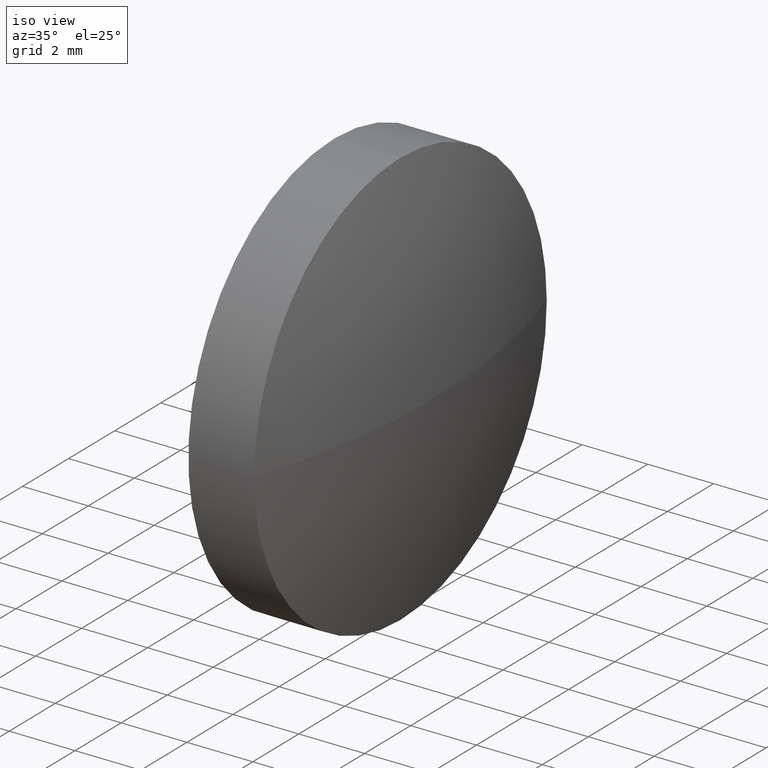
[diagram: clean part render]
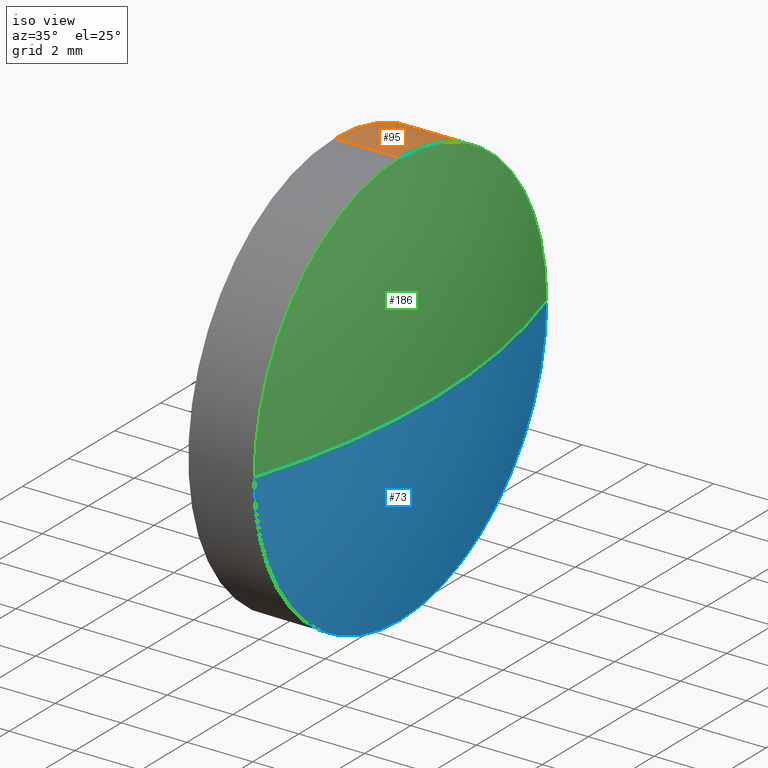
[diagram: same view with three faces highlighted in distinct colors, each labeled with its STEP entity id]
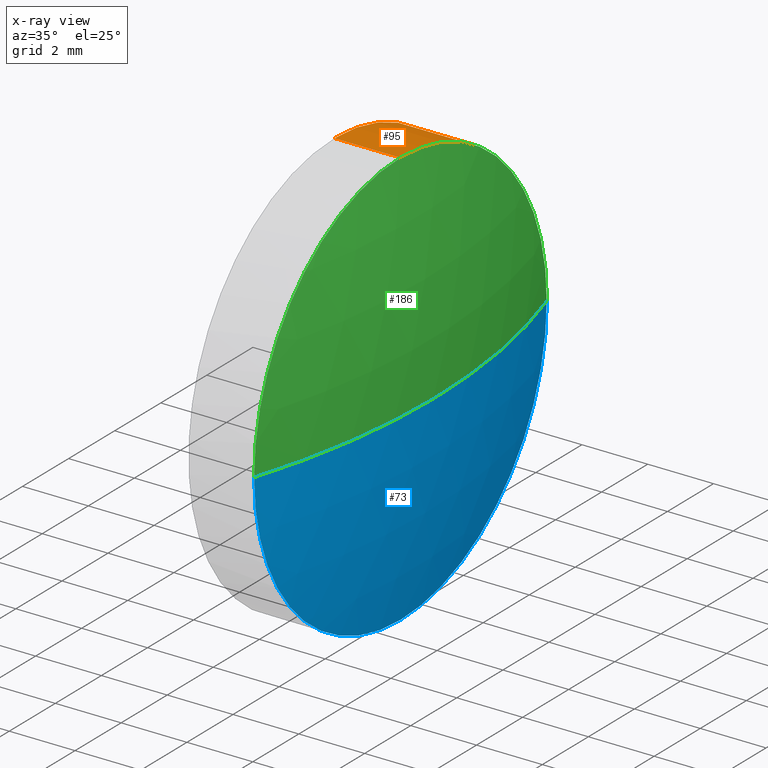
[diagram: x-ray of the same camera — body ghosted, the three highlighted faces saturated]
A machine part, iso view with three faces highlighted in distinct colors.
The next image is the same camera in x-ray (body ghosted, the three faces saturated) — at least one of them is partly hidden behind the body in this view.
Their STEP definitions:

[orange] entity #95 — the highlighted cylindrical surface (partial cylindrical patch) has radius 6.35 mm, axis along (-1, -0, -0).
#1 = CYLINDRICAL_SURFACE ( 'NONE', #99, 6.350000000000022700 ) ;
#3 = DIRECTION ( 'NONE',  ( 0.0000000000000000000, 0.0000000000000000000, 1.000000000000000000 ) ) ;
#7 = DIRECTION ( 'NONE',  ( -1.000000000000000000, -0.0000000000000000000, -0.0000000000000000000 ) ) ;
#15 = ORIENTED_EDGE ( 'NONE', *, *, #145, .F. ) ;
#16 = CARTESIAN_POINT ( 'NONE',  ( 534.5609711574720700, 132.8174666773100200, 0.0000000000000000000 ) ) ;
#19 = CARTESIAN_POINT ( 'NONE',  ( 530.3004400116176400, 126.4674666773100100, 0.0000000000000000000 ) ) ;
#23 = VERTEX_POINT ( 'NONE', #84 ) ;
#24 = DIRECTION ( 'NONE',  ( 0.0000000000000000000, 0.0000000000000000000, 1.000000000000000000 ) ) ;
#26 = VERTEX_POINT ( 'NONE', #43 ) ;
#35 = CIRCLE ( 'NONE', #102, 6.350000000000022700 ) ;
#42 = AXIS2_PLACEMENT_3D ( 'NONE', #147, #164, #182 ) ;
#43 = CARTESIAN_POINT ( 'NONE',  ( 534.5609711574720700, 126.4674666773100100, -6.350000000000022700 ) ) ;
#45 = VECTOR ( 'NONE', #175, 1000.000000000000000 ) ;
#57 = ORIENTED_EDGE ( 'NONE', *, *, #172, .F. ) ;
#59 = LINE ( 'NONE', #60, #45 ) ;
#60 = CARTESIAN_POINT ( 'NONE',  ( 530.3004400116176400, 126.4674666773100100, 6.350000000000022700 ) ) ;
#64 = EDGE_CURVE ( 'NONE', #126, #26, #35, .T. ) ;
#70 = FACE_OUTER_BOUND ( 'NONE', #129, .T. ) ;
#79 = CARTESIAN_POINT ( 'NONE',  ( 534.5609711574720700, 126.4674666773100100, 0.0000000000000000000 ) ) ;
#80 = AXIS2_PLACEMENT_3D ( 'NONE', #79, #7, #24 ) ;
#84 = CARTESIAN_POINT ( 'NONE',  ( 532.5609711574720700, 126.4674666773100100, 6.350000000000022700 ) ) ;
#86 = CIRCLE ( 'NONE', #80, 6.350000000000022700 ) ;
#90 = ORIENTED_EDGE ( 'NONE', *, *, #128, .T. ) ;
#93 = ORIENTED_EDGE ( 'NONE', *, *, #64, .T. ) ;
#95 = ADVANCED_FACE ( 'NONE', ( #70 ), #1, .T. ) ;
#96 = CARTESIAN_POINT ( 'NONE',  ( 530.3004400116176400, 126.4674666773100100, -6.350000000000022700 ) ) ;
#99 = AXIS2_PLACEMENT_3D ( 'NONE', #19, #173, #3 ) ;
#101 = CARTESIAN_POINT ( 'NONE',  ( 532.5609711574720700, 126.4674666773100100, -6.350000000000022700 ) ) ;
#102 = AXIS2_PLACEMENT_3D ( 'NONE', #153, #169, #185 ) ;
#109 = DIRECTION ( 'NONE',  ( -1.000000000000000000, -0.0000000000000000000, -0.0000000000000000000 ) ) ;
#110 = LINE ( 'NONE', #96, #114 ) ;
#114 = VECTOR ( 'NONE', #109, 1000.000000000000000 ) ;
#121 = ORIENTED_EDGE ( 'NONE', *, *, #149, .T. ) ;
#126 = VERTEX_POINT ( 'NONE', #16 ) ;
#128 = EDGE_CURVE ( 'NONE', #26, #163, #110, .T. ) ;
#129 = EDGE_LOOP ( 'NONE', ( #93, #90, #15, #57, #121 ) ) ;
#131 = CIRCLE ( 'NONE', #42, 6.350000000000022700 ) ;
#145 = EDGE_CURVE ( 'NONE', #23, #163, #131, .T. ) ;
#147 = CARTESIAN_POINT ( 'NONE',  ( 532.5609711574720700, 126.4674666773100100, 0.0000000000000000000 ) ) ;
#149 = EDGE_CURVE ( 'NONE', #161, #126, #86, .T. ) ;
#153 = CARTESIAN_POINT ( 'NONE',  ( 534.5609711574720700, 126.4674666773100100, 0.0000000000000000000 ) ) ;
#158 = CARTESIAN_POINT ( 'NONE',  ( 534.5609711574720700, 126.4674666773100100, 6.350000000000022700 ) ) ;
#161 = VERTEX_POINT ( 'NONE', #158 ) ;
#163 = VERTEX_POINT ( 'NONE', #101 ) ;
#164 = DIRECTION ( 'NONE',  ( -1.000000000000000000, -0.0000000000000000000, -0.0000000000000000000 ) ) ;
#169 = DIRECTION ( 'NONE',  ( -1.000000000000000000, -0.0000000000000000000, -0.0000000000000000000 ) ) ;
#172 = EDGE_CURVE ( 'NONE', #161, #23, #59, .T. ) ;
#173 = DIRECTION ( 'NONE',  ( -1.000000000000000000, -0.0000000000000000000, -0.0000000000000000000 ) ) ;
#175 = DIRECTION ( 'NONE',  ( -1.000000000000000000, -0.0000000000000000000, -0.0000000000000000000 ) ) ;
#182 = DIRECTION ( 'NONE',  ( 0.0000000000000000000, 0.0000000000000000000, 1.000000000000000000 ) ) ;
#185 = DIRECTION ( 'NONE',  ( 0.0000000000000000000, 0.0000000000000000000, 1.000000000000000000 ) ) ;

[blue] entity #73 — the highlighted spherical surface has radius 20.6612 mm.
#2 = CARTESIAN_POINT ( 'NONE',  ( 514.8997211574720700, 126.4674666773099600, 0.0000000000000000000 ) ) ;
#4 = CIRCLE ( 'NONE', #116, 6.350000000000022700 ) ;
#5 = EDGE_CURVE ( 'NONE', #26, #20, #4, .T. ) ;
#10 = DIRECTION ( 'NONE',  ( 0.0000000000000000000, 1.000000000000000000, 0.0000000000000000000 ) ) ;
#12 = VERTEX_POINT ( 'NONE', #139 ) ;
#16 = CARTESIAN_POINT ( 'NONE',  ( 534.5609711574720700, 132.8174666773100200, 0.0000000000000000000 ) ) ;
#18 = ORIENTED_EDGE ( 'NONE', *, *, #136, .T. ) ;
#20 = VERTEX_POINT ( 'NONE', #174 ) ;
#26 = VERTEX_POINT ( 'NONE', #43 ) ;
#35 = CIRCLE ( 'NONE', #102, 6.350000000000022700 ) ;
#43 = CARTESIAN_POINT ( 'NONE',  ( 534.5609711574720700, 126.4674666773100100, -6.350000000000022700 ) ) ;
#46 = EDGE_LOOP ( 'NONE', ( #52, #18, #85, #171 ) ) ;
#52 = ORIENTED_EDGE ( 'NONE', *, *, #157, .F. ) ;
#56 = CIRCLE ( 'NONE', #119, 20.66124999999996300 ) ;
#64 = EDGE_CURVE ( 'NONE', #126, #26, #35, .T. ) ;
#69 = CARTESIAN_POINT ( 'NONE',  ( 534.5609711574720700, 126.4674666773100100, 0.0000000000000000000 ) ) ;
#72 = AXIS2_PLACEMENT_3D ( 'NONE', #122, #137, #10 ) ;
#73 = ADVANCED_FACE ( 'NONE', ( #146 ), #142, .T. ) ;
#74 = CARTESIAN_POINT ( 'NONE',  ( 514.8997211574720700, 126.4674666773099600, 0.0000000000000000000 ) ) ;
#77 = CIRCLE ( 'NONE', #124, 20.66124999999996300 ) ;
#85 = ORIENTED_EDGE ( 'NONE', *, *, #5, .F. ) ;
#94 = DIRECTION ( 'NONE',  ( 0.0000000000000000000, 0.0000000000000000000, 1.000000000000000000 ) ) ;
#98 = DIRECTION ( 'NONE',  ( 0.0000000000000000000, 1.000000000000000000, 1.224646799147354200E-016 ) ) ;
#102 = AXIS2_PLACEMENT_3D ( 'NONE', #153, #169, #185 ) ;
#108 = DIRECTION ( 'NONE',  ( 0.0000000000000000000, 1.224646799147353200E-016, -1.000000000000000000 ) ) ;
#116 = AXIS2_PLACEMENT_3D ( 'NONE', #69, #135, #94 ) ;
#119 = AXIS2_PLACEMENT_3D ( 'NONE', #74, #141, #140 ) ;
#122 = CARTESIAN_POINT ( 'NONE',  ( 514.8997211574720700, 126.4674666773099600, 0.0000000000000000000 ) ) ;
#124 = AXIS2_PLACEMENT_3D ( 'NONE', #2, #108, #98 ) ;
#126 = VERTEX_POINT ( 'NONE', #16 ) ;
#135 = DIRECTION ( 'NONE',  ( -1.000000000000000000, -0.0000000000000000000, -0.0000000000000000000 ) ) ;
#136 = EDGE_CURVE ( 'NONE', #12, #20, #77, .T. ) ;
#137 = DIRECTION ( 'NONE',  ( -0.0000000000000000000, 0.0000000000000000000, -1.000000000000000000 ) ) ;
#139 = CARTESIAN_POINT ( 'NONE',  ( 535.5609711574720700, 126.4674666773099600, 0.0000000000000000000 ) ) ;
#140 = DIRECTION ( 'NONE',  ( 1.000000000000000000, 0.0000000000000000000, 0.0000000000000000000 ) ) ;
#141 = DIRECTION ( 'NONE',  ( -0.0000000000000000000, 0.0000000000000000000, 1.000000000000000000 ) ) ;
#142 = SPHERICAL_SURFACE ( 'NONE', #72, 20.66124999999997800 ) ;
#146 = FACE_OUTER_BOUND ( 'NONE', #46, .T. ) ;
#153 = CARTESIAN_POINT ( 'NONE',  ( 534.5609711574720700, 126.4674666773100100, 0.0000000000000000000 ) ) ;
#157 = EDGE_CURVE ( 'NONE', #12, #126, #56, .T. ) ;
#169 = DIRECTION ( 'NONE',  ( -1.000000000000000000, -0.0000000000000000000, -0.0000000000000000000 ) ) ;
#171 = ORIENTED_EDGE ( 'NONE', *, *, #64, .F. ) ;
#174 = CARTESIAN_POINT ( 'NONE',  ( 534.5609711574720700, 120.1174666773099600, -7.776507174585702000E-016 ) ) ;
#185 = DIRECTION ( 'NONE',  ( 0.0000000000000000000, 0.0000000000000000000, 1.000000000000000000 ) ) ;

[green] entity #186 — the highlighted spherical surface has radius 20.6612 mm.
#2 = CARTESIAN_POINT ( 'NONE',  ( 514.8997211574720700, 126.4674666773099600, 0.0000000000000000000 ) ) ;
#7 = DIRECTION ( 'NONE',  ( -1.000000000000000000, -0.0000000000000000000, -0.0000000000000000000 ) ) ;
#11 = EDGE_CURVE ( 'NONE', #20, #161, #38, .T. ) ;
#12 = VERTEX_POINT ( 'NONE', #139 ) ;
#14 = AXIS2_PLACEMENT_3D ( 'NONE', #28, #40, #120 ) ;
#16 = CARTESIAN_POINT ( 'NONE',  ( 534.5609711574720700, 132.8174666773100200, 0.0000000000000000000 ) ) ;
#17 = DIRECTION ( 'NONE',  ( -0.0000000000000000000, 0.0000000000000000000, -1.000000000000000000 ) ) ;
#20 = VERTEX_POINT ( 'NONE', #174 ) ;
#24 = DIRECTION ( 'NONE',  ( 0.0000000000000000000, 0.0000000000000000000, 1.000000000000000000 ) ) ;
#28 = CARTESIAN_POINT ( 'NONE',  ( 534.5609711574720700, 126.4674666773100100, 0.0000000000000000000 ) ) ;
#34 = EDGE_LOOP ( 'NONE', ( #58, #47, #156, #118 ) ) ;
#38 = CIRCLE ( 'NONE', #14, 6.350000000000022700 ) ;
#40 = DIRECTION ( 'NONE',  ( -1.000000000000000000, -0.0000000000000000000, -0.0000000000000000000 ) ) ;
#44 = DIRECTION ( 'NONE',  ( 0.0000000000000000000, 1.000000000000000000, 0.0000000000000000000 ) ) ;
#47 = ORIENTED_EDGE ( 'NONE', *, *, #157, .T. ) ;
#56 = CIRCLE ( 'NONE', #119, 20.66124999999996300 ) ;
#58 = ORIENTED_EDGE ( 'NONE', *, *, #136, .F. ) ;
#62 = CARTESIAN_POINT ( 'NONE',  ( 514.8997211574720700, 126.4674666773099600, 0.0000000000000000000 ) ) ;
#66 = FACE_OUTER_BOUND ( 'NONE', #34, .T. ) ;
#74 = CARTESIAN_POINT ( 'NONE',  ( 514.8997211574720700, 126.4674666773099600, 0.0000000000000000000 ) ) ;
#77 = CIRCLE ( 'NONE', #124, 20.66124999999996300 ) ;
#79 = CARTESIAN_POINT ( 'NONE',  ( 534.5609711574720700, 126.4674666773100100, 0.0000000000000000000 ) ) ;
#80 = AXIS2_PLACEMENT_3D ( 'NONE', #79, #7, #24 ) ;
#86 = CIRCLE ( 'NONE', #80, 6.350000000000022700 ) ;
#87 = AXIS2_PLACEMENT_3D ( 'NONE', #62, #17, #44 ) ;
#98 = DIRECTION ( 'NONE',  ( 0.0000000000000000000, 1.000000000000000000, 1.224646799147354200E-016 ) ) ;
#108 = DIRECTION ( 'NONE',  ( 0.0000000000000000000, 1.224646799147353200E-016, -1.000000000000000000 ) ) ;
#118 = ORIENTED_EDGE ( 'NONE', *, *, #11, .F. ) ;
#119 = AXIS2_PLACEMENT_3D ( 'NONE', #74, #141, #140 ) ;
#120 = DIRECTION ( 'NONE',  ( 0.0000000000000000000, 0.0000000000000000000, 1.000000000000000000 ) ) ;
#124 = AXIS2_PLACEMENT_3D ( 'NONE', #2, #108, #98 ) ;
#126 = VERTEX_POINT ( 'NONE', #16 ) ;
#136 = EDGE_CURVE ( 'NONE', #12, #20, #77, .T. ) ;
#139 = CARTESIAN_POINT ( 'NONE',  ( 535.5609711574720700, 126.4674666773099600, 0.0000000000000000000 ) ) ;
#140 = DIRECTION ( 'NONE',  ( 1.000000000000000000, 0.0000000000000000000, 0.0000000000000000000 ) ) ;
#141 = DIRECTION ( 'NONE',  ( -0.0000000000000000000, 0.0000000000000000000, 1.000000000000000000 ) ) ;
#149 = EDGE_CURVE ( 'NONE', #161, #126, #86, .T. ) ;
#156 = ORIENTED_EDGE ( 'NONE', *, *, #149, .F. ) ;
#157 = EDGE_CURVE ( 'NONE', #12, #126, #56, .T. ) ;
#158 = CARTESIAN_POINT ( 'NONE',  ( 534.5609711574720700, 126.4674666773100100, 6.350000000000022700 ) ) ;
#161 = VERTEX_POINT ( 'NONE', #158 ) ;
#174 = CARTESIAN_POINT ( 'NONE',  ( 534.5609711574720700, 120.1174666773099600, -7.776507174585702000E-016 ) ) ;
#180 = SPHERICAL_SURFACE ( 'NONE', #87, 20.66124999999997800 ) ;
#186 = ADVANCED_FACE ( 'NONE', ( #66 ), #180, .T. ) ;